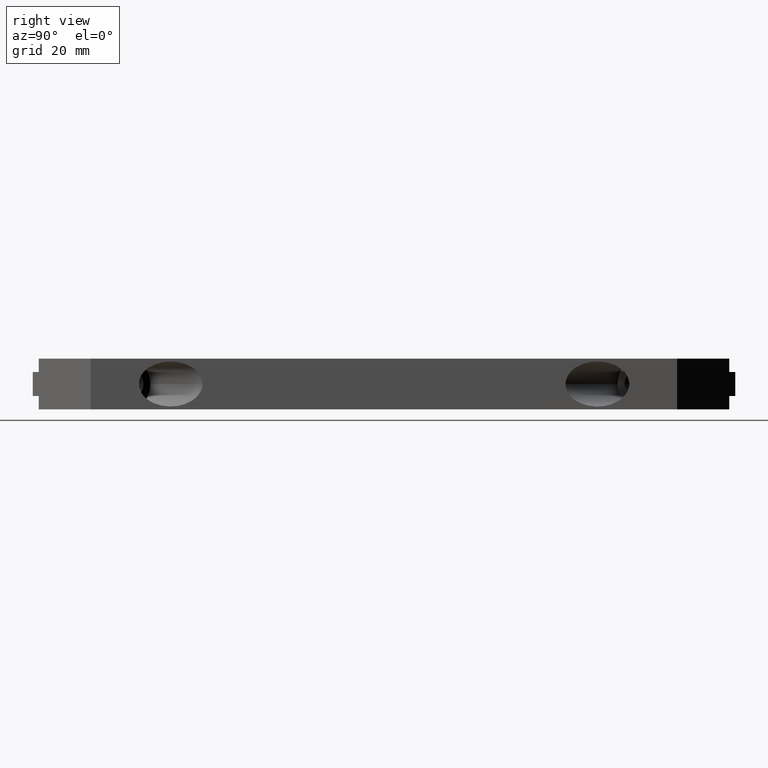
[diagram: clean part render]
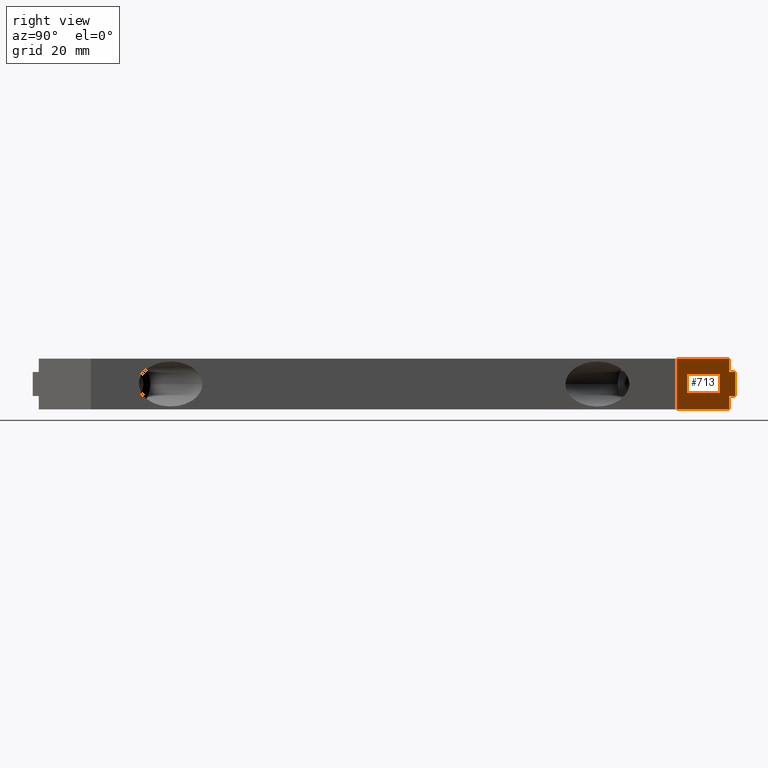
[diagram: same view with one face highlighted and labeled with its STEP entity id]
A machine part, right view. The second image highlights one B-rep face of the part: STEP entity #713.
In plain terms, the highlighted planar face has unit normal (-0.7071, -0.7071, 0).
Its self-contained STEP definition (entity closure, byte-faithful):
#17=CARTESIAN_POINT('',(69.999999999719876,103.999999999583680,0.0));
#18=VERTEX_POINT('',#17);
#25=CARTESIAN_POINT('',(69.999999999719876,103.999999999583680,18.0));
#26=VERTEX_POINT('',#25);
#27=CARTESIAN_POINT('',(69.999999999719876,103.999999999583680,18.0));
#28=DIRECTION('',(0.0,0.0,-1.0));
#29=VECTOR('',#28,18.0);
#30=LINE('',#27,#29);
#31=EDGE_CURVE('',#26,#18,#30,.T.);
#87=CARTESIAN_POINT('',(51.499999999793999,122.499999999510010,18.0));
#88=VERTEX_POINT('',#87);
#89=CARTESIAN_POINT('',(51.499999999793999,122.499999999510010,13.250000000000000));
#90=VERTEX_POINT('',#89);
#91=CARTESIAN_POINT('',(51.499999999793999,122.499999999510010,18.0));
#92=DIRECTION('',(0.0,0.0,-1.0));
#93=VECTOR('',#92,4.750000000000000);
#94=LINE('',#91,#93);
#95=EDGE_CURVE('',#88,#90,#94,.T.);
#113=CARTESIAN_POINT('',(51.499999999793999,122.499999999510010,4.750000000000000));
#114=VERTEX_POINT('',#113);
#121=CARTESIAN_POINT('',(51.499999999793999,122.499999999510010,0.0));
#122=VERTEX_POINT('',#121);
#123=CARTESIAN_POINT('',(51.499999999793999,122.499999999510010,4.750000000000000));
#124=DIRECTION('',(0.0,0.0,-1.0));
#125=VECTOR('',#124,4.750000000000000);
#126=LINE('',#123,#125);
#127=EDGE_CURVE('',#114,#122,#126,.T.);
#336=CARTESIAN_POINT('',(69.999999999719876,103.999999999583680,18.0));
#337=DIRECTION('',(-0.707106781186539,0.707106781186556,0.0));
#338=VECTOR('',#337,26.162950903797753);
#339=LINE('',#336,#338);
#340=EDGE_CURVE('',#26,#88,#339,.T.);
#418=CARTESIAN_POINT('',(69.999999999719876,103.999999999583680,0.0));
#419=DIRECTION('',(-0.707106781186539,0.707106781186556,0.0));
#420=VECTOR('',#419,26.162950903797753);
#421=LINE('',#418,#420);
#422=EDGE_CURVE('',#18,#122,#421,.T.);
#607=CARTESIAN_POINT('',(49.378679999802443,124.621319999501110,4.750000000000000));
#608=VERTEX_POINT('',#607);
#625=CARTESIAN_POINT('',(49.378679999802443,124.621319999501110,13.250000000000000));
#626=VERTEX_POINT('',#625);
#633=CARTESIAN_POINT('',(49.378679999802443,124.621319999501110,4.750000000000000));
#634=DIRECTION('',(0.0,0.0,1.0));
#635=VECTOR('',#634,8.500000000000000);
#636=LINE('',#633,#635);
#637=EDGE_CURVE('',#608,#626,#636,.T.);
#669=CARTESIAN_POINT('',(51.499999999793999,122.499999999510010,4.750000000000000));
#670=DIRECTION('',(-0.707106781186623,0.707106781186472,0.0));
#671=VECTOR('',#670,2.999999514121031);
#672=LINE('',#669,#671);
#673=EDGE_CURVE('',#114,#608,#672,.T.);
#689=CARTESIAN_POINT('',(51.499999999793999,122.499999999510010,13.250000000000000));
#690=DIRECTION('',(-0.707106781186623,0.707106781186472,0.0));
#691=VECTOR('',#690,2.999999514121031);
#692=LINE('',#689,#691);
#693=EDGE_CURVE('',#90,#626,#692,.T.);
#698=CARTESIAN_POINT('',(70.000030144815810,103.999969854487740,18.000039370139636));
#699=DIRECTION('',(-0.707106781186552,-0.707106781186543,0.0));
#700=DIRECTION('',(-0.707106781186543,0.707106781186552,0.0));
#701=AXIS2_PLACEMENT_3D('',#698,#699,#700);
#702=PLANE('',#701);
#703=ORIENTED_EDGE('',*,*,#31,.T.);
#704=ORIENTED_EDGE('',*,*,#422,.T.);
#705=ORIENTED_EDGE('',*,*,#127,.F.);
#706=ORIENTED_EDGE('',*,*,#673,.T.);
#707=ORIENTED_EDGE('',*,*,#637,.T.);
#708=ORIENTED_EDGE('',*,*,#693,.F.);
#709=ORIENTED_EDGE('',*,*,#95,.F.);
#710=ORIENTED_EDGE('',*,*,#340,.F.);
#711=EDGE_LOOP('',(#703,#704,#705,#706,#707,#708,#709,#710));
#712=FACE_OUTER_BOUND('',#711,.T.);
#713=ADVANCED_FACE('',(#712),#702,.F.);